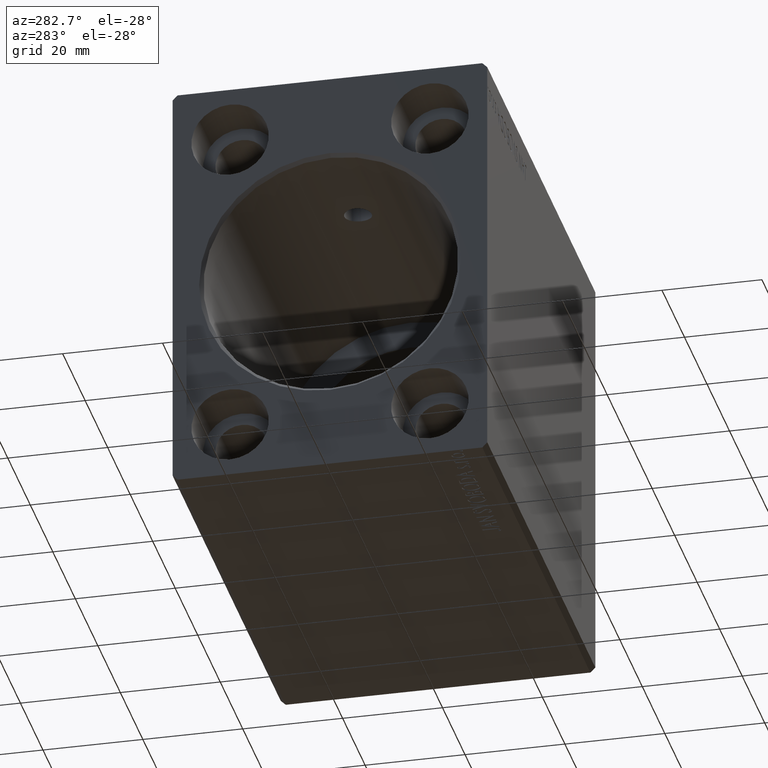
[diagram: clean part render]
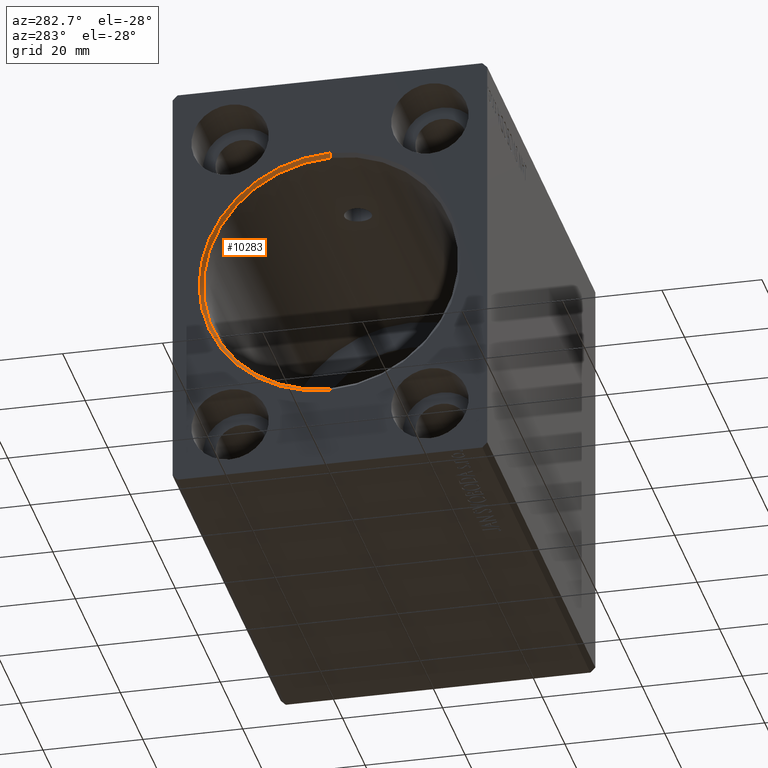
[diagram: same view with one face highlighted and labeled with its STEP entity id]
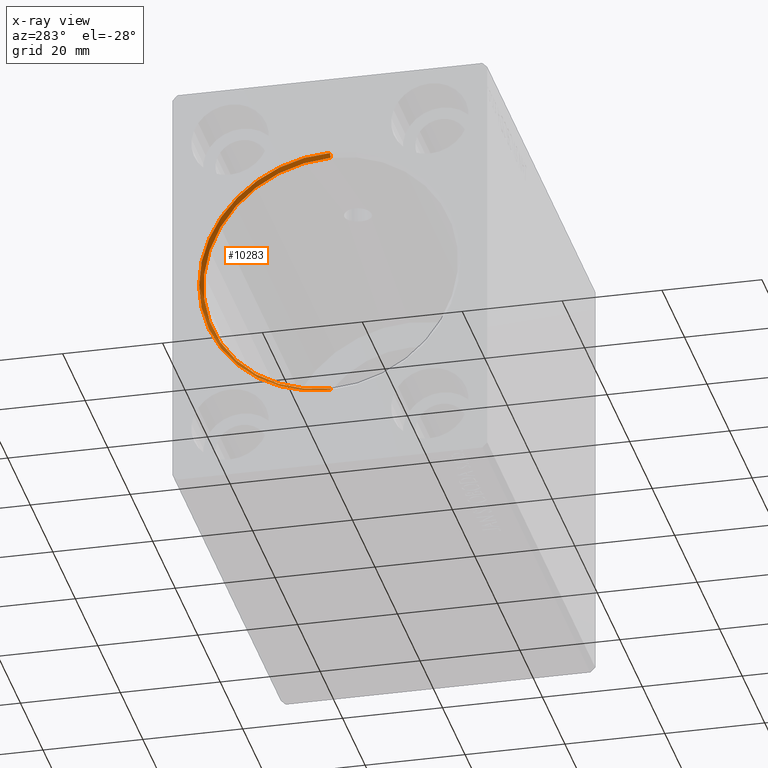
[diagram: x-ray of the same camera — body ghosted, the highlighted face saturated]
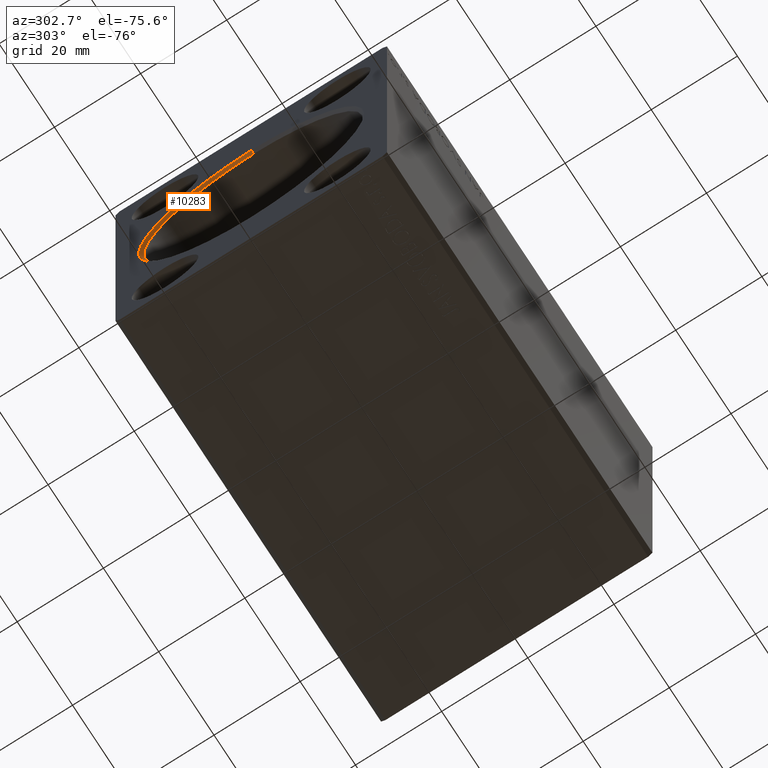
[diagram: same view with one face highlighted and labeled with its STEP entity id]
A machine part, auxiliary view. The second image highlights one B-rep face of the part: STEP entity #10283.
The next image is the same camera in x-ray: the body ghosted, the highlighted face saturated — about 0% of this face is hidden behind the body in this view.
A second angle (auxiliary view) of the same face is appended — the face is thin or edge-on in the first view.
In plain terms, the highlighted conical surface has half-angle 45 deg.
Its self-contained STEP definition (entity closure, byte-faithful):
#331 = AXIS2_PLACEMENT_3D ( 'NONE', #27964, #41039, #8038 ) ;
#661 = ORIENTED_EDGE ( 'NONE', *, *, #27410, .F. ) ;
#1253 = FACE_OUTER_BOUND ( 'NONE', #23634, .T. ) ;
#1650 = CARTESIAN_POINT ( 'NONE',  ( 0.000000000000000000, 3.208574613766067271E-15, -26.20000000000001350 ) ) ;
#3319 = VECTOR ( 'NONE', #10364, 1000.000000000000000 ) ;
#4056 = CARTESIAN_POINT ( 'NONE',  ( 0.7000000000000061728, 0.000000000000000000, 25.50000000000000000 ) ) ;
#6430 = EDGE_CURVE ( 'NONE', #8563, #41153, #11094, .T. ) ;
#7886 = DIRECTION ( 'NONE',  ( -1.000000000000000000, 0.000000000000000000, 0.000000000000000000 ) ) ;
#8038 = DIRECTION ( 'NONE',  ( 0.000000000000000000, 0.000000000000000000, -1.000000000000000000 ) ) ;
#8563 = VERTEX_POINT ( 'NONE', #40093 ) ;
#9411 = EDGE_CURVE ( 'NONE', #14613, #41153, #26738, .T. ) ;
#10283 = ADVANCED_FACE ( 'NONE', ( #1253 ), #15122, .F. ) ;
#10364 = DIRECTION ( 'NONE',  ( -0.7071067811865422437, 8.659560562354996953E-17, -0.7071067811865527908 ) ) ;
#10626 = ORIENTED_EDGE ( 'NONE', *, *, #37541, .F. ) ;
#11094 = LINE ( 'NONE', #4056, #13650 ) ;
#11157 = DIRECTION ( 'NONE',  ( 0.000000000000000000, 0.000000000000000000, -1.000000000000000000 ) ) ;
#12578 = CARTESIAN_POINT ( 'NONE',  ( 0.000000000000000000, 0.000000000000000000, 26.20000000000001350 ) ) ;
#13650 = VECTOR ( 'NONE', #36614, 1000.000000000000000 ) ;
#14613 = VERTEX_POINT ( 'NONE', #1650 ) ;
#15122 = CONICAL_SURFACE ( 'NONE', #17879, 25.50000000000000000, 0.7853981633974557175 ) ;
#17879 = AXIS2_PLACEMENT_3D ( 'NONE', #30812, #7886, #27391 ) ;
#20865 = CARTESIAN_POINT ( 'NONE',  ( 0.7000000000000061728, 3.122849337825750222E-15, -25.50000000000000000 ) ) ;
#22526 = ORIENTED_EDGE ( 'NONE', *, *, #6430, .T. ) ;
#23606 = DIRECTION ( 'NONE',  ( 1.000000000000000000, 0.000000000000000000, 0.000000000000000000 ) ) ;
#23620 = CIRCLE ( 'NONE', #331, 25.50000000000000000 ) ;
#23634 = EDGE_LOOP ( 'NONE', ( #10626, #661, #22526, #37174 ) ) ;
#26738 = CIRCLE ( 'NONE', #34944, 26.20000000000001350 ) ;
#27391 = DIRECTION ( 'NONE',  ( 0.000000000000000000, 0.000000000000000000, 1.000000000000000000 ) ) ;
#27410 = EDGE_CURVE ( 'NONE', #8563, #42338, #23620, .T. ) ;
#27502 = LINE ( 'NONE', #20865, #3319 ) ;
#27964 = CARTESIAN_POINT ( 'NONE',  ( 0.7000000000000061728, 0.000000000000000000, 0.000000000000000000 ) ) ;
#28833 = CARTESIAN_POINT ( 'NONE',  ( 0.7000000000000061728, 3.122849337825750222E-15, -25.50000000000000000 ) ) ;
#30812 = CARTESIAN_POINT ( 'NONE',  ( 0.7000000000000061728, 0.000000000000000000, 0.000000000000000000 ) ) ;
#33247 = CARTESIAN_POINT ( 'NONE',  ( 0.000000000000000000, 0.000000000000000000, 0.000000000000000000 ) ) ;
#34944 = AXIS2_PLACEMENT_3D ( 'NONE', #33247, #23606, #11157 ) ;
#36614 = DIRECTION ( 'NONE',  ( -0.7071067811865422437, 0.000000000000000000, 0.7071067811865527908 ) ) ;
#37174 = ORIENTED_EDGE ( 'NONE', *, *, #9411, .F. ) ;
#37541 = EDGE_CURVE ( 'NONE', #42338, #14613, #27502, .T. ) ;
#40093 = CARTESIAN_POINT ( 'NONE',  ( 0.7000000000000061728, 0.000000000000000000, 25.50000000000000000 ) ) ;
#41039 = DIRECTION ( 'NONE',  ( -1.000000000000000000, 0.000000000000000000, 0.000000000000000000 ) ) ;
#41153 = VERTEX_POINT ( 'NONE', #12578 ) ;
#42338 = VERTEX_POINT ( 'NONE', #28833 ) ;